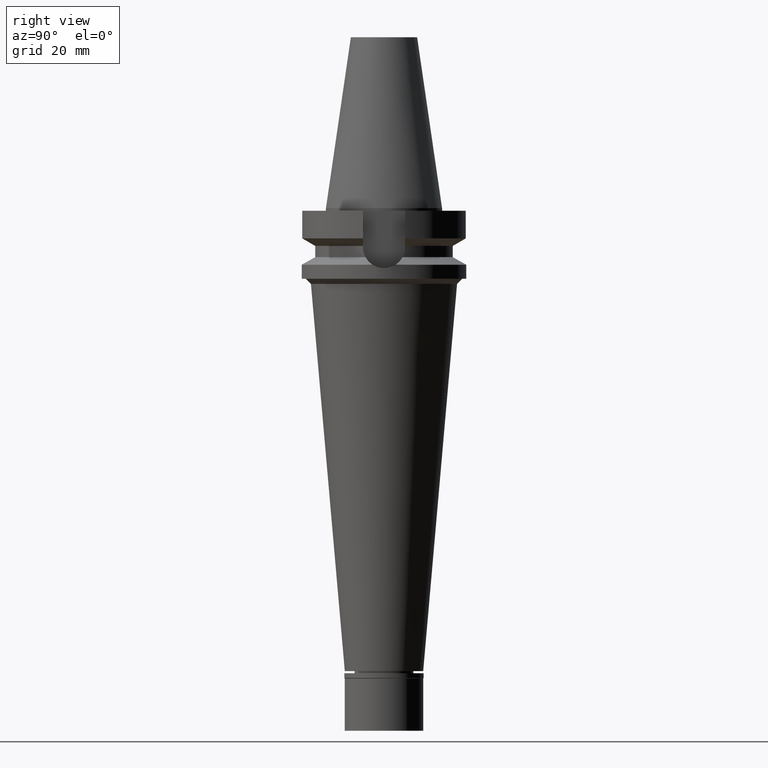
[diagram: clean part render]
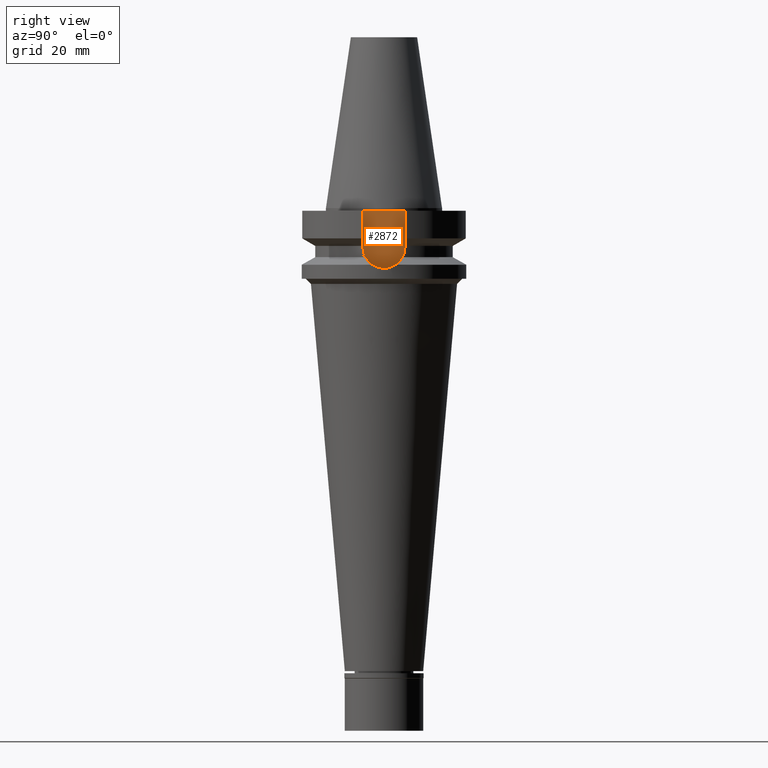
[diagram: same view with one face highlighted and labeled with its STEP entity id]
A machine part, right view. The second image highlights one B-rep face of the part: STEP entity #2872.
In plain terms, the highlighted planar face has unit normal (1, 0, 0).
Its self-contained STEP definition (entity closure, byte-faithful):
#67 = EDGE_CURVE ( 'NONE', #2533, #478, #966, .T. ) ;
#477 = CARTESIAN_POINT ( 'NONE',  ( 22.50000000000000000, 8.050000000000000711, -1.000000000000000000 ) ) ;
#478 = VERTEX_POINT ( 'NONE', #853 ) ;
#635 = CARTESIAN_POINT ( 'NONE',  ( 22.50000000000000000, 0.0000000000000000000, -14.94999999999999929 ) ) ;
#739 = VECTOR ( 'NONE', #1238, 1000.000000000000000 ) ;
#743 = PLANE ( 'NONE',  #2546 ) ;
#792 = CIRCLE ( 'NONE', #1200, 8.050000000000000711 ) ;
#853 = CARTESIAN_POINT ( 'NONE',  ( 22.50000000000000000, -8.050000000000000711, -1.000000000000000000 ) ) ;
#906 = ORIENTED_EDGE ( 'NONE', *, *, #2374, .T. ) ;
#966 = LINE ( 'NONE', #997, #993 ) ;
#989 = EDGE_CURVE ( 'NONE', #1141, #2533, #792, .T. ) ;
#993 = VECTOR ( 'NONE', #1939, 1000.000000000000000 ) ;
#997 = CARTESIAN_POINT ( 'NONE',  ( 22.50000000000000000, -8.050000000000000711, -14.94999999999999929 ) ) ;
#1001 = DIRECTION ( 'NONE',  ( 1.000000000000000000, 0.0000000000000000000, 0.0000000000000000000 ) ) ;
#1129 = CARTESIAN_POINT ( 'NONE',  ( 22.50000000000000000, -8.050000000000000711, -14.94999999999999929 ) ) ;
#1141 = VERTEX_POINT ( 'NONE', #1182 ) ;
#1176 = DIRECTION ( 'NONE',  ( 0.0000000000000000000, 0.0000000000000000000, -1.000000000000000000 ) ) ;
#1182 = CARTESIAN_POINT ( 'NONE',  ( 22.50000000000000000, 8.050000000000000711, -14.94999999999999929 ) ) ;
#1200 = AXIS2_PLACEMENT_3D ( 'NONE', #635, #3019, #2849 ) ;
#1217 = DIRECTION ( 'NONE',  ( 0.0000000000000000000, 1.000000000000000000, 0.0000000000000000000 ) ) ;
#1238 = DIRECTION ( 'NONE',  ( 0.0000000000000000000, -1.000000000000000000, 0.0000000000000000000 ) ) ;
#1456 = FACE_OUTER_BOUND ( 'NONE', #2715, .T. ) ;
#1488 = CARTESIAN_POINT ( 'NONE',  ( 22.50000000000000000, 8.050000000000000711, -1.000000000000000000 ) ) ;
#1939 = DIRECTION ( 'NONE',  ( 0.0000000000000000000, 0.0000000000000000000, 1.000000000000000000 ) ) ;
#1952 = CARTESIAN_POINT ( 'NONE',  ( 22.50000000000000000, 0.0000000000000000000, 0.0000000000000000000 ) ) ;
#2098 = VECTOR ( 'NONE', #1176, 1000.000000000000000 ) ;
#2237 = ORIENTED_EDGE ( 'NONE', *, *, #2667, .F. ) ;
#2374 = EDGE_CURVE ( 'NONE', #2427, #478, #2466, .T. ) ;
#2377 = LINE ( 'NONE', #477, #2098 ) ;
#2427 = VERTEX_POINT ( 'NONE', #2766 ) ;
#2466 = LINE ( 'NONE', #1488, #739 ) ;
#2533 = VERTEX_POINT ( 'NONE', #1129 ) ;
#2546 = AXIS2_PLACEMENT_3D ( 'NONE', #1952, #1001, #1217 ) ;
#2667 = EDGE_CURVE ( 'NONE', #2427, #1141, #2377, .T. ) ;
#2687 = ORIENTED_EDGE ( 'NONE', *, *, #989, .F. ) ;
#2715 = EDGE_LOOP ( 'NONE', ( #3098, #2687, #2237, #906 ) ) ;
#2766 = CARTESIAN_POINT ( 'NONE',  ( 22.50000000000000000, 8.050000000000000711, -1.000000000000000000 ) ) ;
#2849 = DIRECTION ( 'NONE',  ( 0.0000000000000000000, 0.0000000000000000000, -1.000000000000000000 ) ) ;
#2872 = ADVANCED_FACE ( 'NONE', ( #1456 ), #743, .T. ) ;
#3019 = DIRECTION ( 'NONE',  ( -1.000000000000000000, 0.0000000000000000000, 0.0000000000000000000 ) ) ;
#3098 = ORIENTED_EDGE ( 'NONE', *, *, #67, .F. ) ;